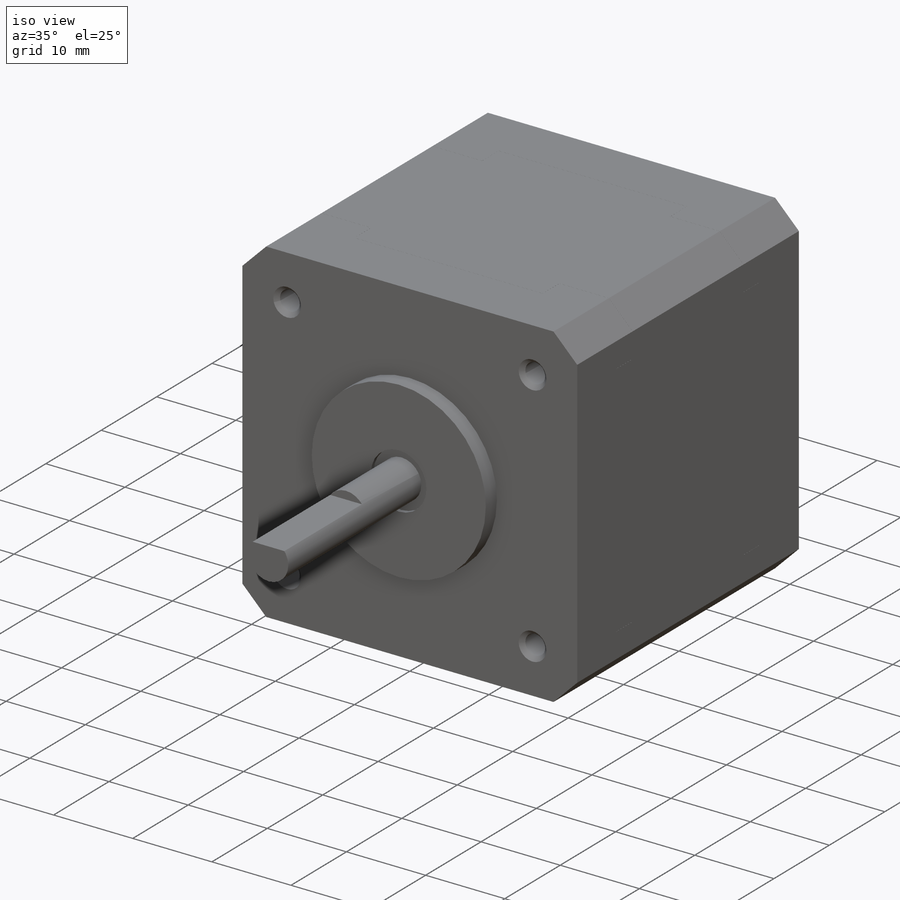
[diagram: iso view]
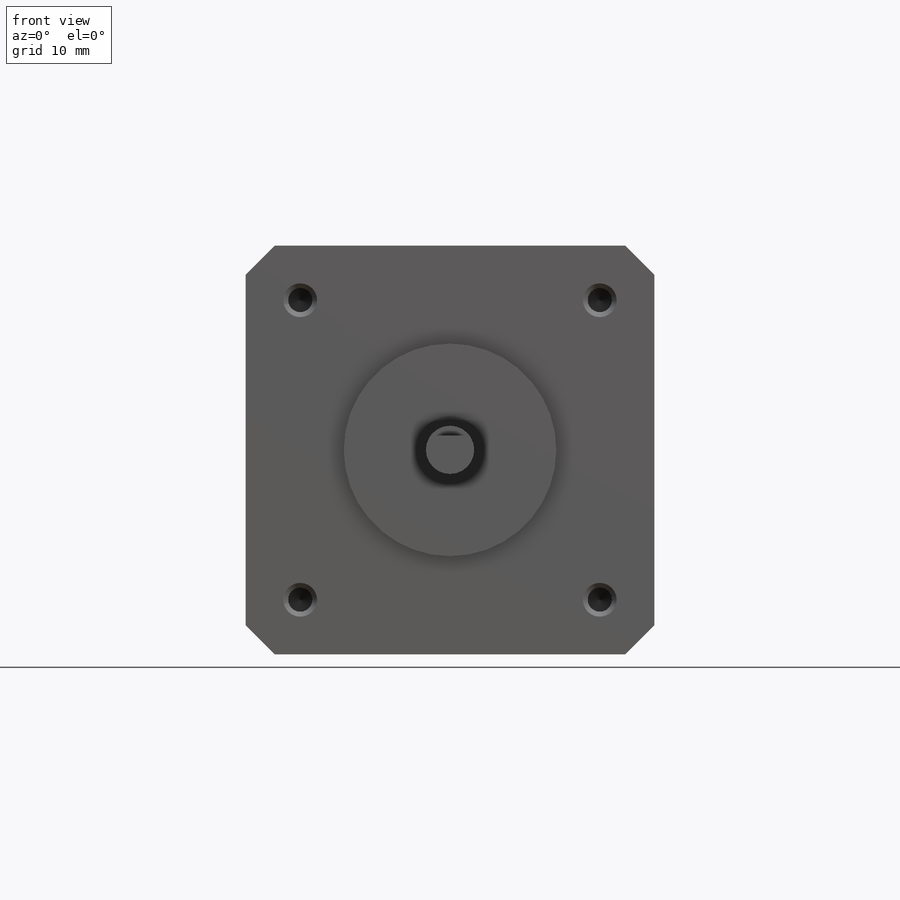
[diagram: front view]
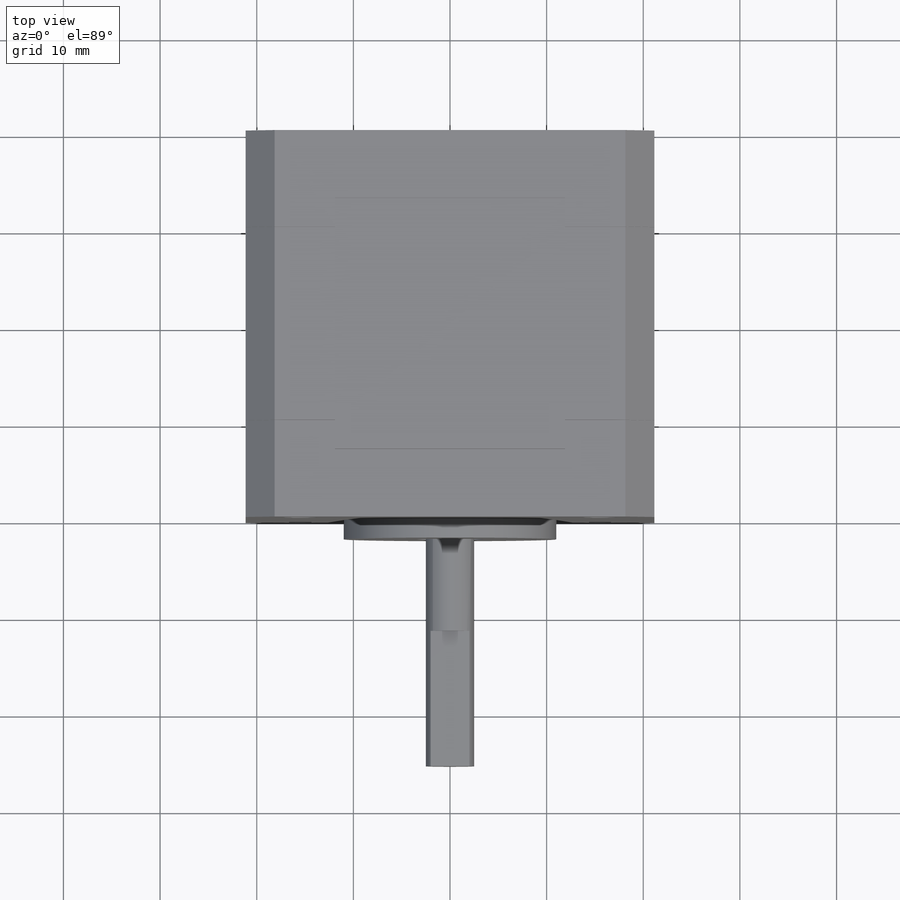
[diagram: top view]
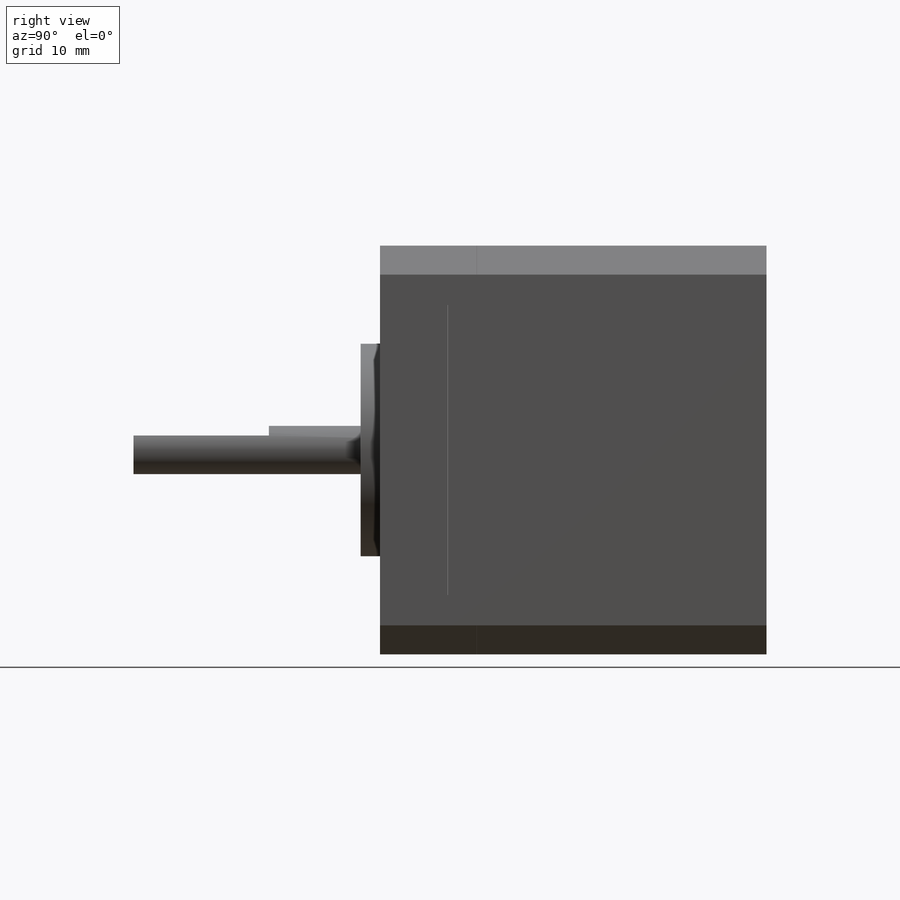
[diagram: right view]
SOLIDWORKS PART (.sldprt)
format: sldprt  version: not decoded by parser v0  size: 688,640 bytes
history: native  units: mm
features: sketch x11, cut_extrude x5, extrude x4, thread x4, material x1, chamfer x1, hole x1, mirror x1 (+13 scaffold rows collapsed)
feature tree (41):
  scaffold x13  (default folders/planes/origin — collapsed)
  material  "1060 Alloy"
  sketch  "Sketch1"  dims[D1=42.3mm D2=42.3mm]
  extrude  "Boss-Extrude1"  Depth=40mm
  chamfer  "Chamfer1"  Distance=3mm Angle=45deg
  hole  "M3x0.5 Tapped Hole1"  Diameter=2.5mm Depth=10mm
  sketch  "Sketch4"  dims[D1=31.0mm D2=31.0mm D3=31.0mm D4=31.0mm]
  sketch  "Sketch3"  dims[hole-wizard template sketch: 46 standard entries collapsed; hole parameters above]
  thread  "Hole Thread1"  Diameter=4.5mm  [1 undecoded]
  thread  "Hole Thread2"  Diameter=4.5mm  [1 undecoded]
  thread  "Hole Thread3"  Diameter=4.5mm  [1 undecoded]
  thread  "Hole Thread4"  Diameter=4.5mm  [1 undecoded]
  sketch  "Sketch5"  dims[D1=22.0mm]
  extrude  "Boss-Extrude2"  Depth=2mm
  sketch  "Sketch6"  dims[D1=7.0mm]
  cut_extrude  "Cut-Extrude1"  Depth=0.5mm
  sketch  "Sketch7"  dims[D1=5.0mm]
  extrude  "Boss-Extrude3"  Depth=24mm
  sketch  "Sketch8"  dims[D2=5.0mm D1=1.5mm]
  cut_extrude  "Cut-Extrude2"  Depth=14mm
  sketch  "Sketch9"  dims[D1=3.0mm D2=3.0mm D3=30.0mm D4=30.0mm D5=3.0mm D6=3.0mm D7=20.0mm D8=0.01mm]
  cut_extrude  "Cut-Extrude3"  Depth=54mm
  sketch  "Sketch10"
  cut_extrude  "Cut-Extrude4"  [1 undecoded]
  sketch  "Sketch11"
  cut_extrude  "Cut-Extrude5"  [1 undecoded]
  sketch  "Sketch12"
  extrude  "Boss-Extrude4"  [1 undecoded]
  mirror  "Mirror1"
decode coverage: 20 of 27 modeling features carry decoded parameters
note: ~ marks probable driven/reference dimensions
note: 7 parameter values undecoded
summary: no parameter record found for 3 features
note: suppression state not decoded; provenance and decode notes live in map.json
